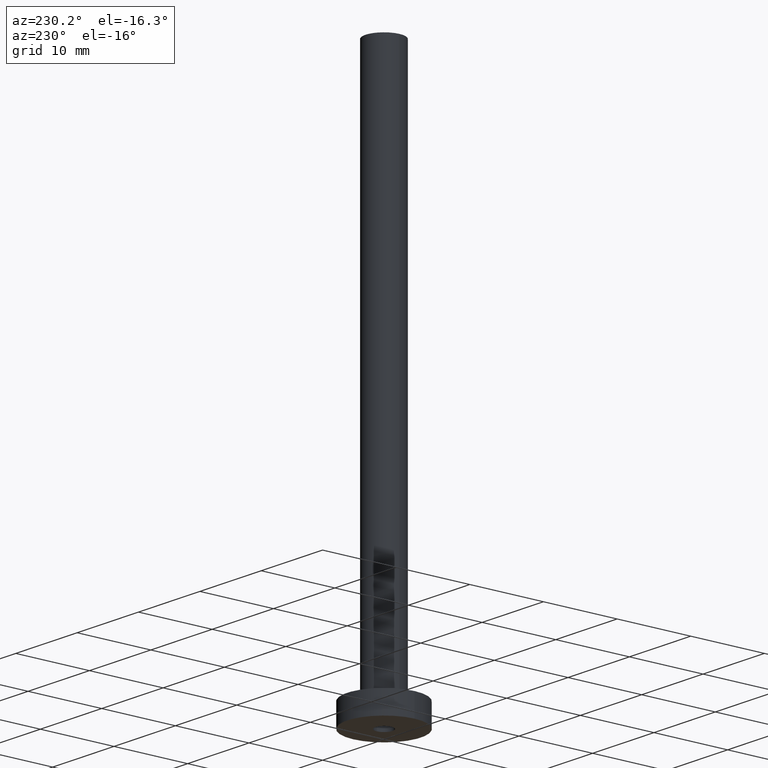
[diagram: clean part render]
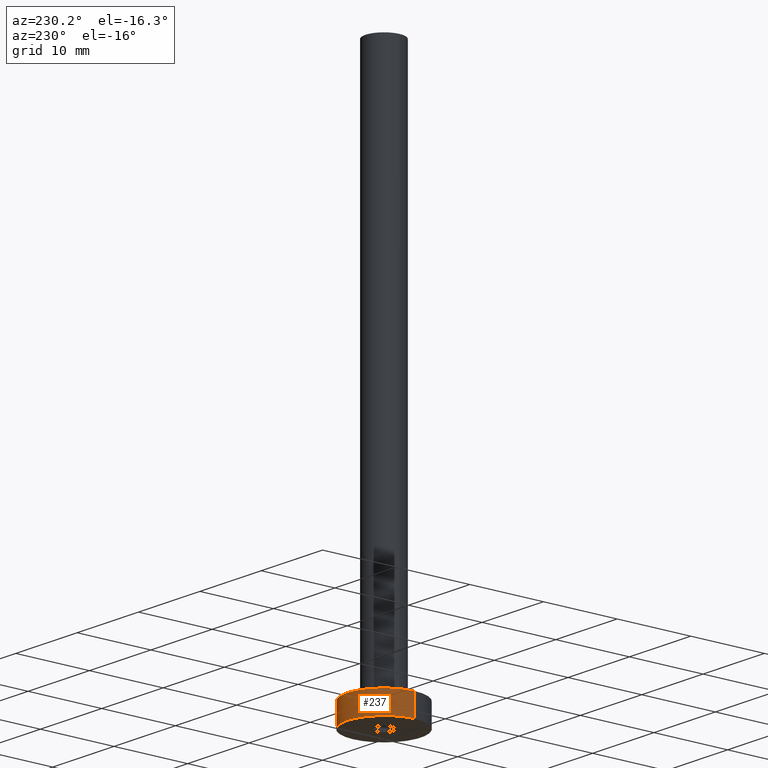
[diagram: same view with one face highlighted and labeled with its STEP entity id]
A machine part, auxiliary view. The second image highlights one B-rep face of the part: STEP entity #237.
In plain terms, the highlighted cylindrical surface (partial cylindrical patch) has radius 5 mm, axis along (-0, -0, -1).
Its self-contained STEP definition (entity closure, byte-faithful):
#2 = CARTESIAN_POINT ( 'NONE',  ( 5.000000000000000000, 6.123233995736766282E-16, 3.000000000000000000 ) ) ;
#6 = CARTESIAN_POINT ( 'NONE',  ( -5.000000000000000000, 0.000000000000000000, 0.000000000000000000 ) ) ;
#24 = EDGE_CURVE ( 'NONE', #413, #94, #172, .T. ) ;
#25 = ORIENTED_EDGE ( 'NONE', *, *, #404, .F. ) ;
#54 = VERTEX_POINT ( 'NONE', #242 ) ;
#59 = EDGE_CURVE ( 'NONE', #413, #54, #348, .T. ) ;
#70 = DIRECTION ( 'NONE',  ( -0.000000000000000000, -0.000000000000000000, -1.000000000000000000 ) ) ;
#77 = FACE_OUTER_BOUND ( 'NONE', #160, .T. ) ;
#94 = VERTEX_POINT ( 'NONE', #105 ) ;
#101 = ORIENTED_EDGE ( 'NONE', *, *, #24, .F. ) ;
#105 = CARTESIAN_POINT ( 'NONE',  ( -5.000000000000000000, 0.000000000000000000, 3.000000000000000000 ) ) ;
#114 = AXIS2_PLACEMENT_3D ( 'NONE', #183, #144, #246 ) ;
#131 = VECTOR ( 'NONE', #178, 1000.000000000000000 ) ;
#144 = DIRECTION ( 'NONE',  ( 0.000000000000000000, 0.000000000000000000, 1.000000000000000000 ) ) ;
#150 = CARTESIAN_POINT ( 'NONE',  ( -5.000000000000000000, 0.000000000000000000, 3.000000000000000000 ) ) ;
#154 = CARTESIAN_POINT ( 'NONE',  ( 0.000000000000000000, 0.000000000000000000, 0.000000000000000000 ) ) ;
#156 = CARTESIAN_POINT ( 'NONE',  ( 0.000000000000000000, 0.000000000000000000, 3.000000000000000000 ) ) ;
#160 = EDGE_LOOP ( 'NONE', ( #101, #449, #312, #25 ) ) ;
#172 = CIRCLE ( 'NONE', #114, 5.000000000000000000 ) ;
#178 = DIRECTION ( 'NONE',  ( -0.000000000000000000, -0.000000000000000000, -1.000000000000000000 ) ) ;
#183 = CARTESIAN_POINT ( 'NONE',  ( 0.000000000000000000, 0.000000000000000000, 3.000000000000000000 ) ) ;
#194 = CIRCLE ( 'NONE', #453, 5.000000000000000000 ) ;
#218 = DIRECTION ( 'NONE',  ( -0.000000000000000000, -0.000000000000000000, -1.000000000000000000 ) ) ;
#220 = CYLINDRICAL_SURFACE ( 'NONE', #393, 5.000000000000000000 ) ;
#237 = ADVANCED_FACE ( 'NONE', ( #77 ), #220, .T. ) ;
#242 = CARTESIAN_POINT ( 'NONE',  ( 5.000000000000000000, 6.123233995736766282E-16, 0.000000000000000000 ) ) ;
#246 = DIRECTION ( 'NONE',  ( 1.000000000000000000, 0.000000000000000000, 0.000000000000000000 ) ) ;
#248 = VERTEX_POINT ( 'NONE', #6 ) ;
#267 = EDGE_CURVE ( 'NONE', #54, #248, #194, .T. ) ;
#281 = VECTOR ( 'NONE', #70, 1000.000000000000000 ) ;
#289 = DIRECTION ( 'NONE',  ( 1.000000000000000000, 0.000000000000000000, 0.000000000000000000 ) ) ;
#291 = CARTESIAN_POINT ( 'NONE',  ( 5.000000000000000000, 6.123233995736766282E-16, 3.000000000000000000 ) ) ;
#312 = ORIENTED_EDGE ( 'NONE', *, *, #267, .T. ) ;
#348 = LINE ( 'NONE', #2, #281 ) ;
#359 = DIRECTION ( 'NONE',  ( -1.000000000000000000, 0.000000000000000000, 0.000000000000000000 ) ) ;
#360 = DIRECTION ( 'NONE',  ( 0.000000000000000000, 0.000000000000000000, 1.000000000000000000 ) ) ;
#393 = AXIS2_PLACEMENT_3D ( 'NONE', #156, #218, #359 ) ;
#404 = EDGE_CURVE ( 'NONE', #94, #248, #408, .T. ) ;
#408 = LINE ( 'NONE', #150, #131 ) ;
#413 = VERTEX_POINT ( 'NONE', #291 ) ;
#449 = ORIENTED_EDGE ( 'NONE', *, *, #59, .T. ) ;
#453 = AXIS2_PLACEMENT_3D ( 'NONE', #154, #360, #289 ) ;